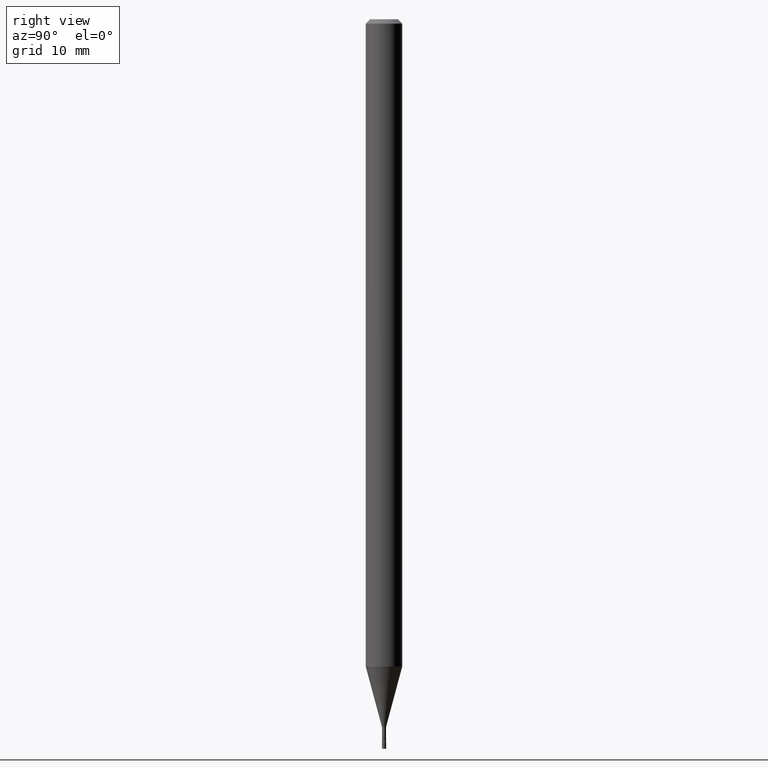
[diagram: clean part render]
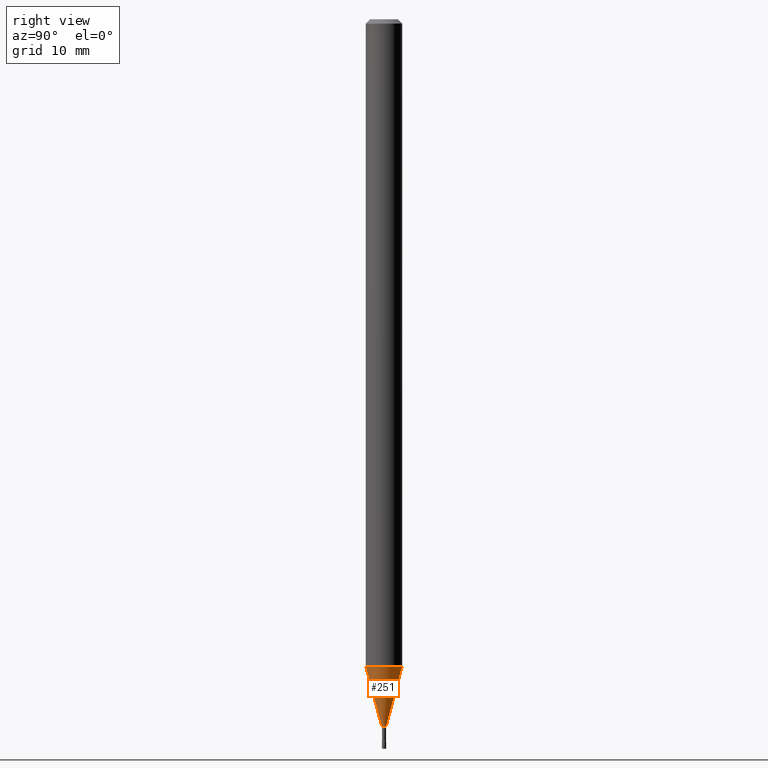
[diagram: same view with one face highlighted and labeled with its STEP entity id]
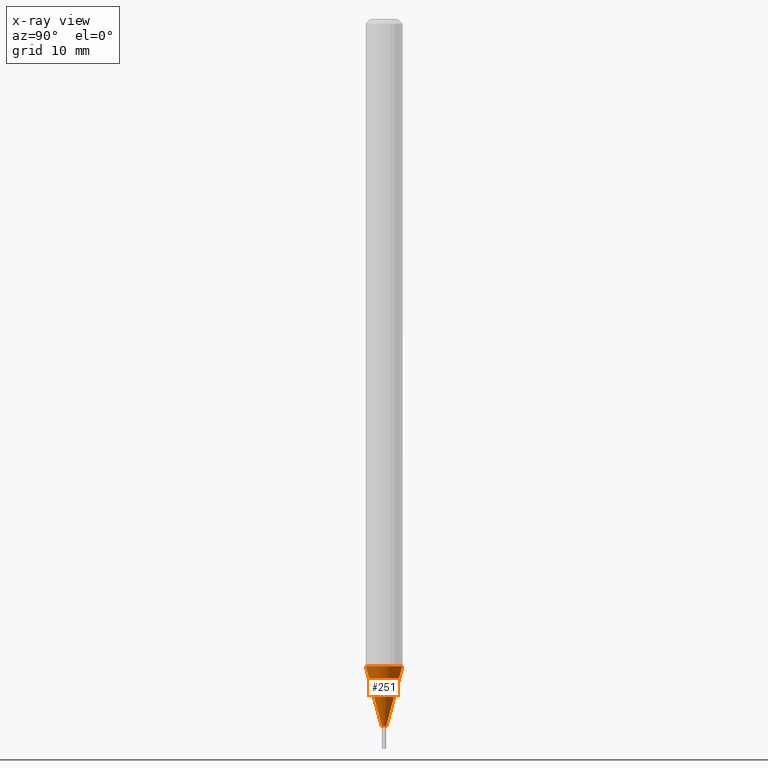
[diagram: x-ray of the same camera — body ghosted, the highlighted face saturated]
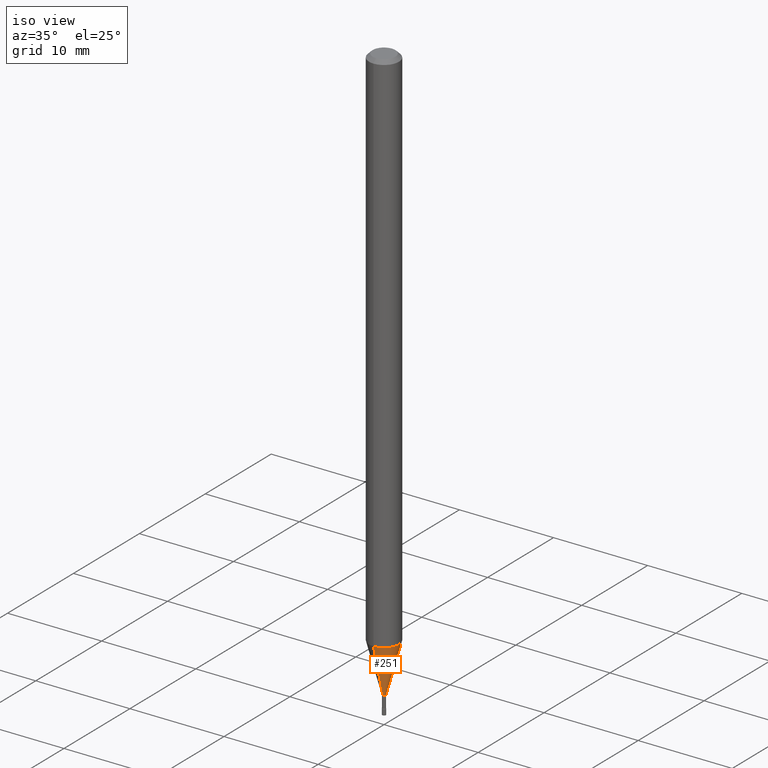
[diagram: same view with one face highlighted and labeled with its STEP entity id]
A machine part, right view. The second image highlights one B-rep face of the part: STEP entity #251.
The next image is the same camera in x-ray: the body ghosted, the highlighted face saturated — about 0% of this face is hidden behind the body in this view.
A second angle (iso view) of the same face is appended — the face is thin or edge-on in the first view.
In plain terms, the highlighted conical surface has half-angle 15 deg.
Its self-contained STEP definition (entity closure, byte-faithful):
#40 = CARTESIAN_POINT ( 'NONE',  ( -4.364351673553374845E-16, -0.06250000000000775768, -2.218057782720305848 ) ) ;
#44 = EDGE_CURVE ( 'NONE', #413, #344, #318, .T. ) ;
#99 = DIRECTION ( 'NONE',  ( -2.445457239619285156E-29, 3.491497902823772989E-15, 1.000000000000000000 ) ) ;
#100 = AXIS2_PLACEMENT_3D ( 'NONE', #508, #99, #266 ) ;
#102 = FACE_OUTER_BOUND ( 'NONE', #470, .T. ) ;
#130 = CARTESIAN_POINT ( 'NONE',  ( 4.440892098501167517E-16, 0.06249999999999225619, -2.218057782720306292 ) ) ;
#136 = VECTOR ( 'NONE', #352, 39.37007874015748854 ) ;
#155 = CARTESIAN_POINT ( 'NONE',  ( -5.279896712707545228E-17, -0.007561112605672437592, -2.423092501787273534 ) ) ;
#158 = DIRECTION ( 'NONE',  ( -1.807323732225325406E-15, -0.2588190451025175198, 0.9659258262890690894 ) ) ;
#251 = ADVANCED_FACE ( 'NONE', ( #102 ), #392, .T. ) ;
#266 = DIRECTION ( 'NONE',  ( -6.982962677686265922E-15, -1.000000000000000000, 4.370956789862821150E-15 ) ) ;
#269 = CARTESIAN_POINT ( 'NONE',  ( 5.925569100762892628E-29, -8.460222388338274370E-15, -2.423092501787273534 ) ) ;
#271 = CARTESIAN_POINT ( 'NONE',  ( 2.489070731061815457E-16, 0.007561112605655517967, -2.423092501787273534 ) ) ;
#282 = CARTESIAN_POINT ( 'NONE',  ( 5.372493636224587136E-17, 0.007561112605655517099, -2.423092501787273534 ) ) ;
#283 = AXIS2_PLACEMENT_3D ( 'NONE', #343, #346, #464 ) ;
#296 = ORIENTED_EDGE ( 'NONE', *, *, #44, .F. ) ;
#300 = CIRCLE ( 'NONE', #100, 0.06250000000000000000 ) ;
#309 = EDGE_CURVE ( 'NONE', #413, #460, #317, .T. ) ;
#314 = EDGE_CURVE ( 'NONE', #344, #515, #300, .T. ) ;
#317 = CIRCLE ( 'NONE', #283, 0.007561112605663977346 ) ;
#318 = LINE ( 'NONE', #155, #393 ) ;
#322 = ORIENTED_EDGE ( 'NONE', *, *, #314, .F. ) ;
#333 = DIRECTION ( 'NONE',  ( -2.445457239619285156E-29, 3.491497902823772989E-15, 1.000000000000000000 ) ) ;
#340 = AXIS2_PLACEMENT_3D ( 'NONE', #269, #333, #495 ) ;
#343 = CARTESIAN_POINT ( 'NONE',  ( 5.925569100762892628E-29, -8.460222388338274370E-15, -2.423092501787273534 ) ) ;
#344 = VERTEX_POINT ( 'NONE', #40 ) ;
#346 = DIRECTION ( 'NONE',  ( -2.445457239619285156E-29, 3.491497902823772989E-15, 1.000000000000000000 ) ) ;
#352 = DIRECTION ( 'NONE',  ( 1.839019923739595582E-15, 0.2588190451025242922, 0.9659258262890673130 ) ) ;
#358 = LINE ( 'NONE', #282, #136 ) ;
#392 = CONICAL_SURFACE ( 'NONE', #340, 0.007561112605663977346, 0.2617993877991495744 ) ;
#393 = VECTOR ( 'NONE', #158, 39.37007874015748854 ) ;
#401 = EDGE_CURVE ( 'NONE', #460, #515, #358, .T. ) ;
#413 = VERTEX_POINT ( 'NONE', #517 ) ;
#418 = ORIENTED_EDGE ( 'NONE', *, *, #401, .T. ) ;
#449 = ORIENTED_EDGE ( 'NONE', *, *, #309, .T. ) ;
#460 = VERTEX_POINT ( 'NONE', #271 ) ;
#464 = DIRECTION ( 'NONE',  ( -6.982962677686265133E-15, -1.000000000000000000, 0.000000000000000000 ) ) ;
#470 = EDGE_LOOP ( 'NONE', ( #449, #418, #322, #296 ) ) ;
#495 = DIRECTION ( 'NONE',  ( -6.982962677686265133E-15, -1.000000000000000000, 0.000000000000000000 ) ) ;
#508 = CARTESIAN_POINT ( 'NONE',  ( 5.424165462647271456E-29, -7.744344096709895441E-15, -2.218057782720305848 ) ) ;
#515 = VERTEX_POINT ( 'NONE', #130 ) ;
#517 = CARTESIAN_POINT ( 'NONE',  ( -5.279896712707545228E-17, -0.007561112605672437592, -2.423092501787273534 ) ) ;